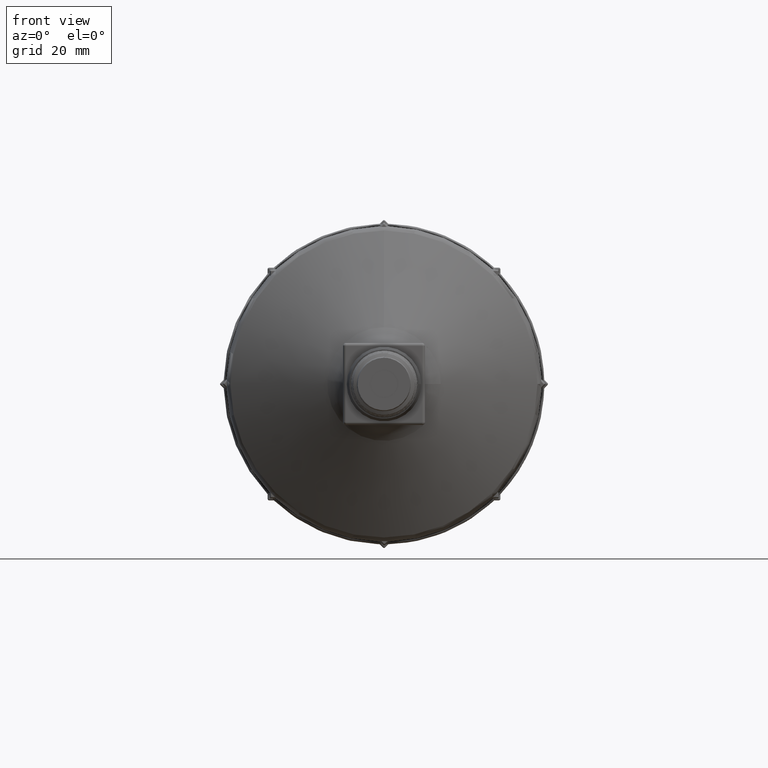
[diagram: clean part render]
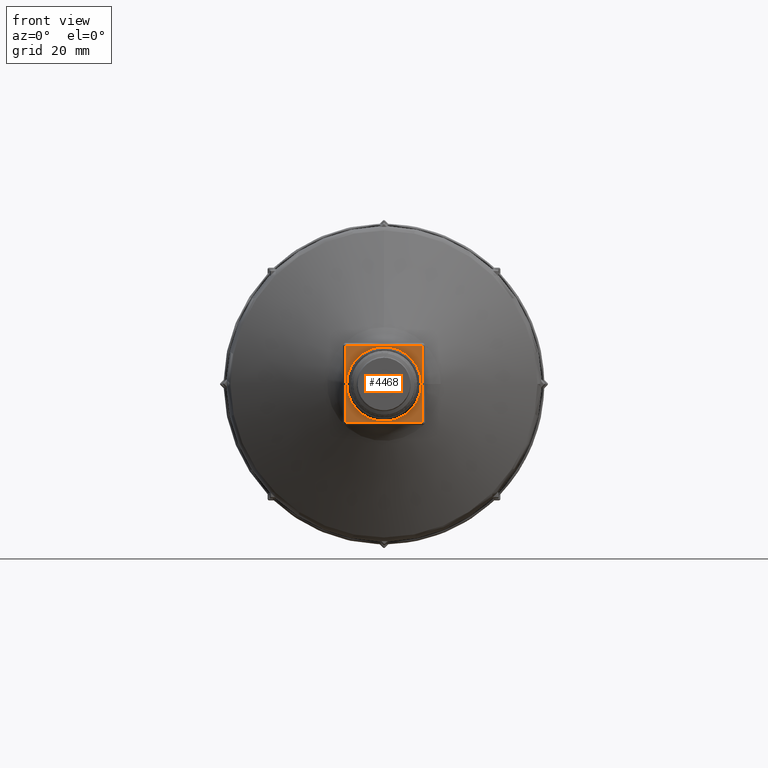
[diagram: same view with one face highlighted and labeled with its STEP entity id]
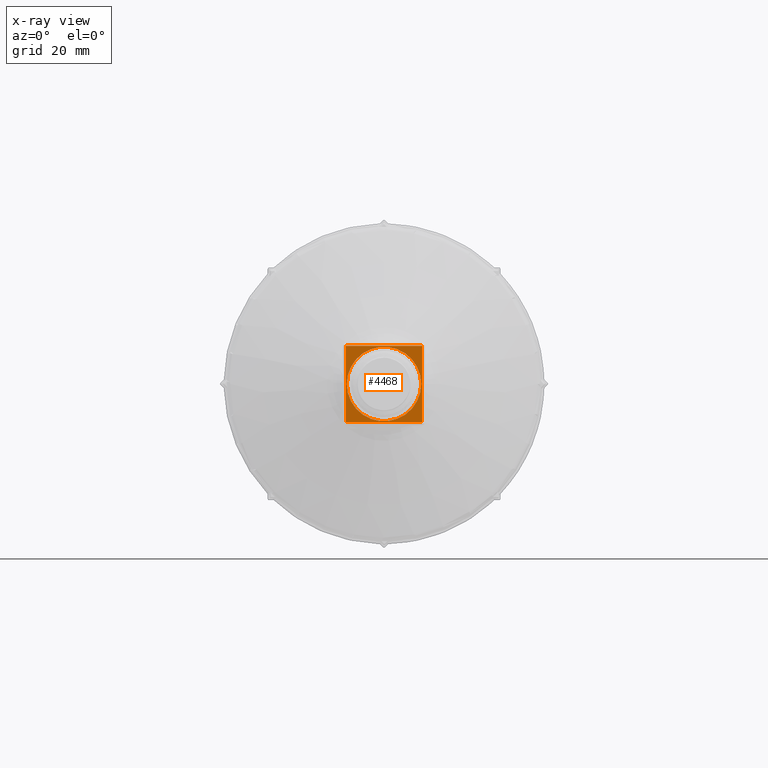
[diagram: x-ray of the same camera — body ghosted, the highlighted face saturated]
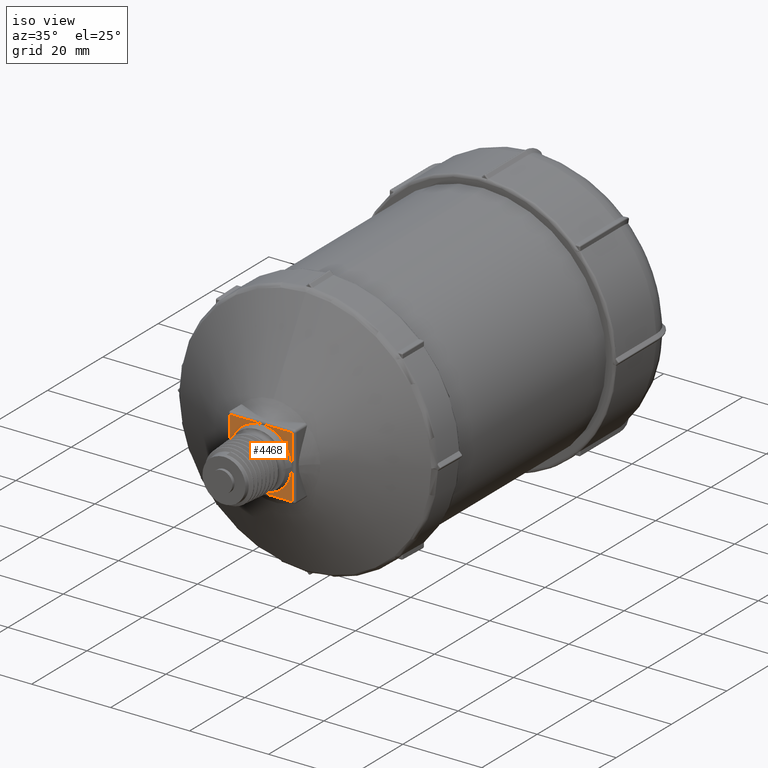
[diagram: same view with one face highlighted and labeled with its STEP entity id]
A machine part, front view. The second image highlights one B-rep face of the part: STEP entity #4468.
The next image is the same camera in x-ray: the body ghosted, the highlighted face saturated — about 0% of this face is hidden behind the body in this view.
A second angle (iso view) of the same face is appended — the face is thin or edge-on in the first view.
In plain terms, the highlighted planar face has unit normal (-0, 1, -0).
Its self-contained STEP definition (entity closure, byte-faithful):
#165=FACE_BOUND('',#1004,.T.);
#230=PLANE('',#4955);
#436=CIRCLE('',#4923,7.72475895636926);
#739=FACE_OUTER_BOUND('',#1003,.T.);
#1003=EDGE_LOOP('',(#3860,#3861,#3862,#3863));
#1004=EDGE_LOOP('',(#3864));
#1380=LINE('',#12165,#1583);
#1382=LINE('',#12168,#1585);
#1384=LINE('',#12171,#1587);
#1390=LINE('',#12214,#1593);
#1583=VECTOR('',#6059,10.);
#1585=VECTOR('',#6063,10.);
#1587=VECTOR('',#6067,10.);
#1593=VECTOR('',#6079,10.);
#1949=VERTEX_POINT('',#10851);
#1959=VERTEX_POINT('',#12117);
#1963=VERTEX_POINT('',#12125);
#1967=VERTEX_POINT('',#12134);
#1968=VERTEX_POINT('',#12138);
#2559=EDGE_CURVE('',#1949,#1949,#436,.T.);
#2594=EDGE_CURVE('',#1968,#1967,#1380,.T.);
#2596=EDGE_CURVE('',#1963,#1968,#1382,.T.);
#2598=EDGE_CURVE('',#1967,#1959,#1384,.T.);
#2606=EDGE_CURVE('',#1959,#1963,#1390,.T.);
#3860=ORIENTED_EDGE('',*,*,#2594,.F.);
#3861=ORIENTED_EDGE('',*,*,#2596,.F.);
#3862=ORIENTED_EDGE('',*,*,#2606,.F.);
#3863=ORIENTED_EDGE('',*,*,#2598,.F.);
#3864=ORIENTED_EDGE('',*,*,#2559,.F.);
#4468=ADVANCED_FACE('',(#739,#165),#230,.F.);
#4923=AXIS2_PLACEMENT_3D('',#10853,#6007,#6008);
#4955=AXIS2_PLACEMENT_3D('',#12285,#6089,#6090);
#6007=DIRECTION('center_axis',(2.78549348743439E-16,-1.,2.85821632927255E-16));
#6008=DIRECTION('ref_axis',(-1.,-2.78549348743439E-16,-5.55111512312589E-16));
#6059=DIRECTION('',(5.55111512312589E-16,-2.85821632927255E-16,-1.));
#6063=DIRECTION('',(1.,2.78549348743439E-16,5.55111512312589E-16));
#6067=DIRECTION('',(-1.,-2.78549348743439E-16,-5.55111512312589E-16));
#6079=DIRECTION('',(-5.55111512312589E-16,2.85821632927255E-16,1.));
#6089=DIRECTION('center_axis',(-2.78549348743439E-16,1.,-2.85821632927255E-16));
#6090=DIRECTION('ref_axis',(-1.,-2.78549348743439E-16,-5.55111512312589E-16));
#10851=CARTESIAN_POINT('',(7.72475895636924,14.5,-4.83079845663477E-14));
#10853=CARTESIAN_POINT('Origin',(-1.64787986793458E-14,14.5,-5.35420973258783E-14));
#12117=CARTESIAN_POINT('',(-7.90000000000001,14.5,-7.90000000000006));
#12125=CARTESIAN_POINT('',(-7.90000000000002,14.5,7.89999999999994));
#12134=CARTESIAN_POINT('',(7.89999999999999,14.5,-7.90000000000005));
#12138=CARTESIAN_POINT('',(7.89999999999998,14.5,7.89999999999995));
#12165=CARTESIAN_POINT('',(7.89999999999999,14.5,-4.25000000000005));
#12168=CARTESIAN_POINT('',(4.24999999999998,14.5,7.89999999999995));
#12171=CARTESIAN_POINT('',(-1.20586853450646E-14,14.5,-7.90000000000006));
#12214=CARTESIAN_POINT('',(-7.90000000000002,14.5,-5.80662713182227E-14));
#12285=CARTESIAN_POINT('Origin',(-1.64094097403067E-14,14.5,-5.38196530820346E-14));